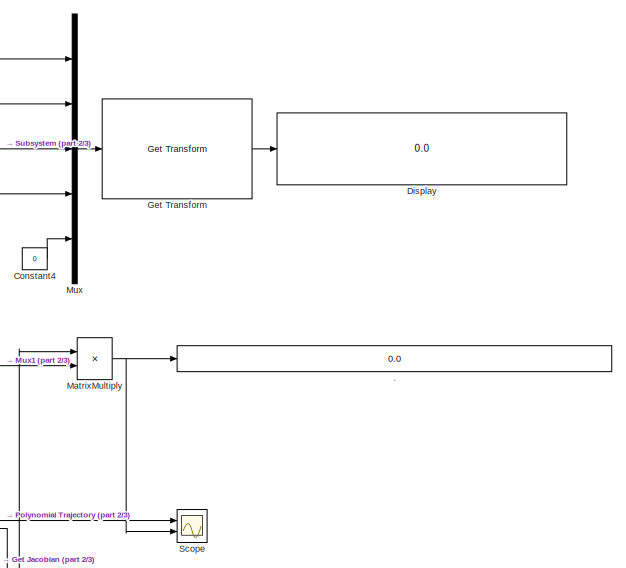
[diagram: root canvas - part 1/3, right side, full height]
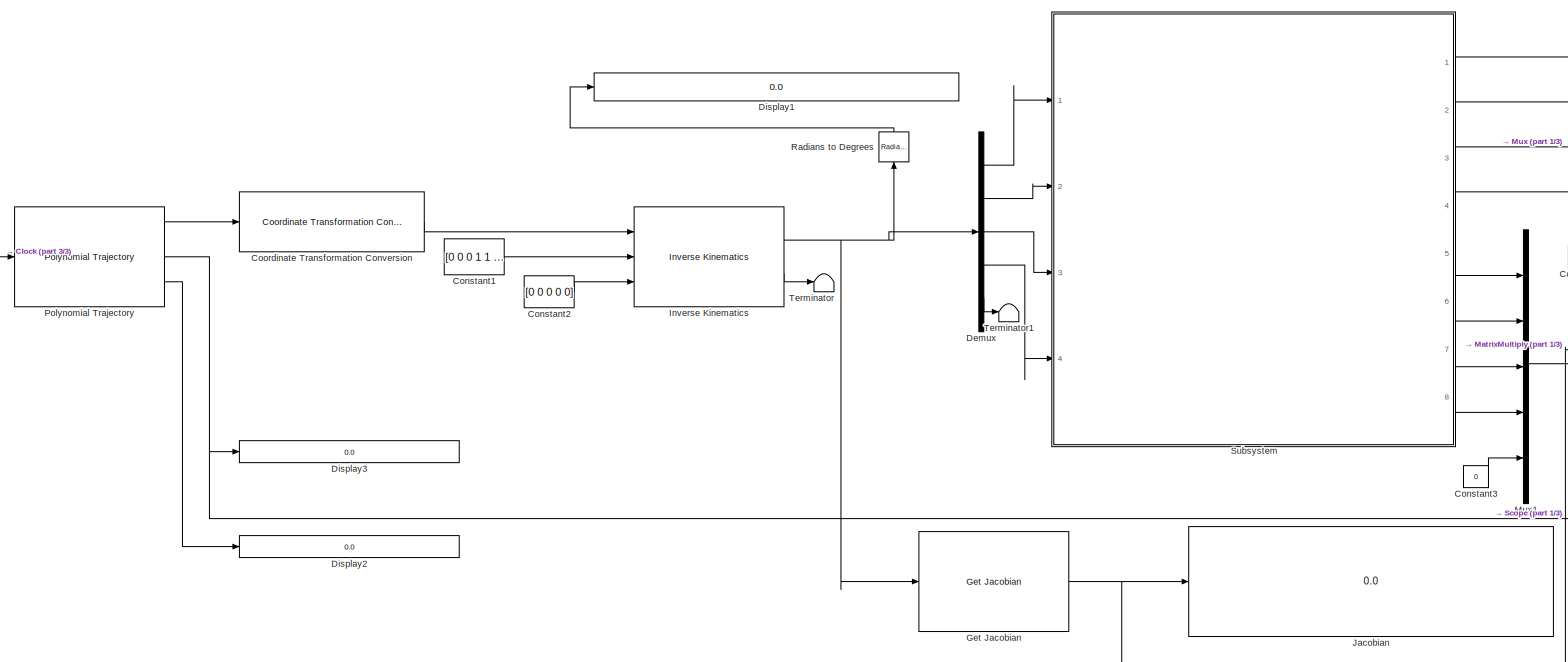
[diagram: root canvas - part 2/3, center side, full height]
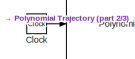
[diagram: root canvas - part 3/3, middle left region]
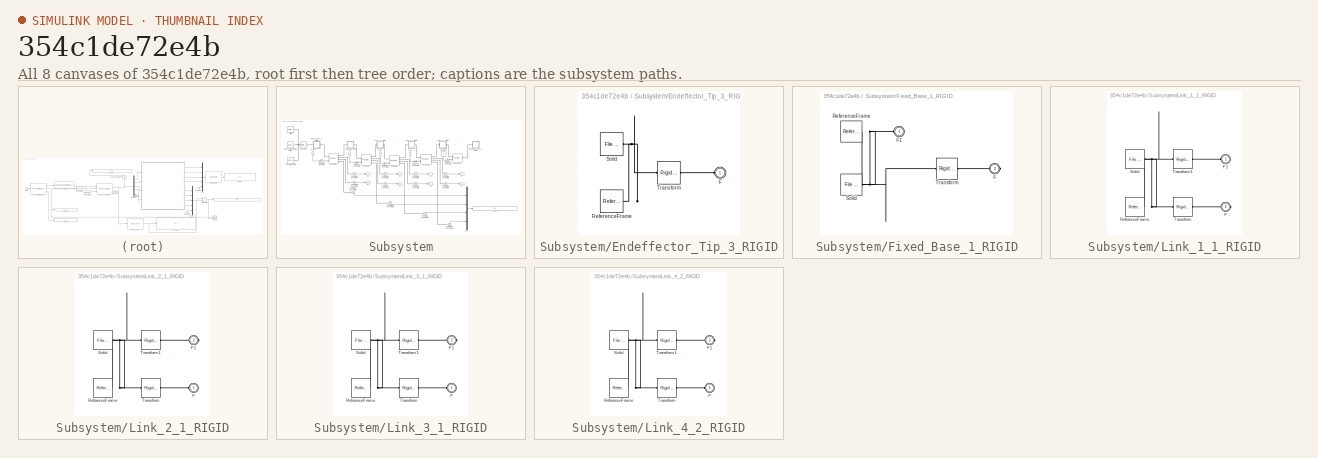
[diagram: thumbnail index - all 8 canvases of the model, root first then tree order]
MODEL slx_354c1de72e4b
KIND model
CONFIG AbsTol = auto
CONFIG EnableMultiTasking = off
CONFIG FixedStep = auto
CONFIG MaxStep = auto
CONFIG MinStep = auto
CONFIG RelTol = 1e-3
CONFIG SampleTimeConstraint = Unconstrained
CONFIG SolverName = VariableStepAuto
CONFIG StartTime = 0.0
CONFIG StopTime = 10
WORKSPACE source: external: MATLAB File  (data not in archive)
BLOCK [Display] .
  Decimation = 1
  Ports = [1]
BLOCK [Clock] Clock
BLOCK [Constant] Constant1
  Value = [0 0 0 1 1 1]
BLOCK [Constant] Constant2
  Value = [0 0 0 0 0]
BLOCK [Constant] Constant3
  Value = 0
BLOCK [Constant] Constant4
  Value = 0
BLOCK [Reference] Coordinate Transformation Conversion  REF=robotcorelib/Coordinate Transformation Conversion
  Ports = [1, 1]
  SourceBlock = robotcorelib/Coordinate Transformation Conversion
  SourceProductBaseCode = RO,NV,RR,UV
  SourceType = robotics.slcore.internal.block.CoordinateTransformationConversion
BLOCK [Demux] Demux
  Outputs = 5
  Ports = [1, 5]
BLOCK [Display] Display
  Decimation = 1
  Ports = [1]
BLOCK [Display] Display1
  Decimation = 1
  Ports = [1]
BLOCK [Display] Display2
  Decimation = 1
  Ports = [1]
BLOCK [Display] Display3
  Decimation = 1
  Ports = [1]
BLOCK [Reference] Get Jacobian  REF=robotmaniplib/Get Jacobian
  Ports = [1, 1]
  SourceBlock = robotmaniplib/Get Jacobian
  SourceProductBaseCode = RO
  SourceType = Get Jacobian
BLOCK [Reference] Get Transform  REF=robotmaniplib/Get Transform
  Ports = [1, 1]
  SourceBlock = robotmaniplib/Get Transform
  SourceProductBaseCode = RO
  SourceType = Get Transform
BLOCK [Reference] Inverse Kinematics  REF=robotmaniplib/Inverse Kinematics
  Ports = [3, 2]
  SourceBlock = robotmaniplib/Inverse Kinematics
  SourceProductBaseCode = RO
  SourceType = Inverse Kinematics
BLOCK [Display] Jacobian
  Decimation = 1
  Ports = [1]
BLOCK [Product] MatrixMultiply
  Multiplication = Matrix(*)
  Ports = [2, 1]
BLOCK [Mux] Mux
  DisplayOption = bar
  Inputs = 5
  Ports = [5, 1]
BLOCK [Mux] Mux1
  DisplayOption = bar
  Inputs = 5
  Ports = [5, 1]
BLOCK [Reference] Polynomial Trajectory  REF=robotcorelib/Polynomial Trajectory
  Ports = [1, 3]
  SourceBlock = robotcorelib/Polynomial Trajectory
  SourceProductBaseCode = RO,NV,RR,UV
  SourceType = robotics.slcore.internal.block.PolyTrajSys
BLOCK [Reference] Radians to Degrees  REF=simulink_extras/Transformations/Radians
to Degrees
  NameLocation = right
  Ports = [1, 1]
  SourceBlock = simulink_extras/Transformations/Radians\nto Degrees
  SourceProductBaseCode = SL
  SourceType = RadiansToDegrees
BLOCK [Scope] Scope
  Floating = off
  NumInputPorts = 2
  Ports = [2]
  ScopeSpecificationString = Simulink.scopes.TimeScopeBlockCfg('CurrentConfiguration', extmgr.ConfigurationSet(extmgr.Configuration('Core','General UI',true),extmgr.Configuration('Core','Source UI',true),extmgr.Configuration('Sources','WiredSimulink',true),extmgr.Configuration('Visuals','Time Domain',true,'SerializedDisplays',{struct('MinYLimReal','-1.29625','MaxYLimReal','1.66625','YLabelReal','','MinYLimMag','0.00000','MaxY...<+1515ch>
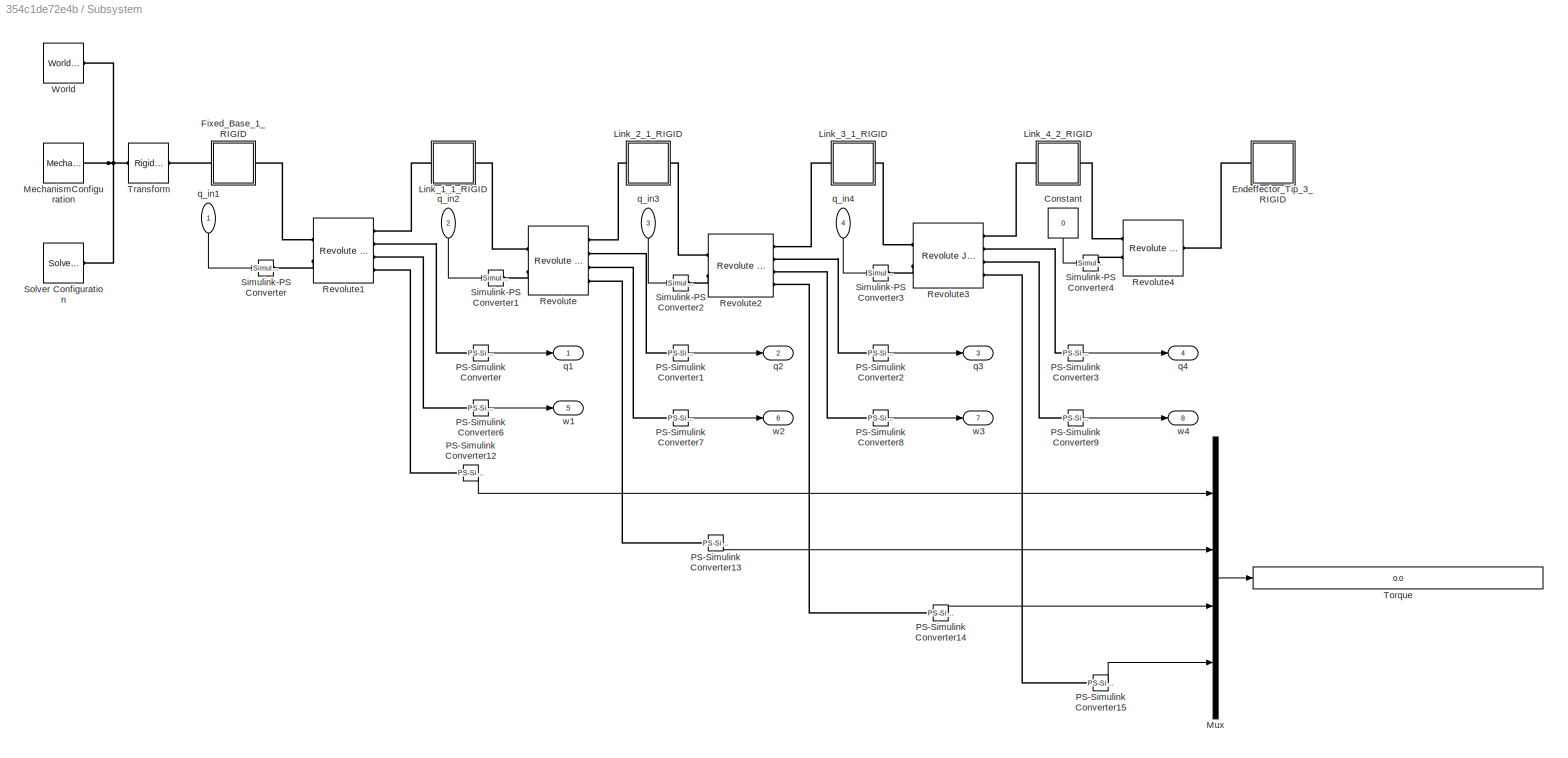
BLOCK [SubSystem] Subsystem
  Ports = [4, 8]
  RequestExecContextInheritance = off
BLOCK [Constant] Subsystem/Constant
  NameLocation = left
  Value = 0
BLOCK [SubSystem] Subsystem/Endeffector_Tip_3_RIGID
  Ports = [0, 0, 0, 0, 0, 1]
  RequestExecContextInheritance = off
BLOCK [PMIOPort] Subsystem/Endeffector_Tip_3_RIGID/F
  Side = Left
BLOCK [Reference] Subsystem/Endeffector_Tip_3_RIGID/ReferenceFrame  REF=sm_lib/Frames and
Transforms/Reference
Frame
  Ports = [0, 0, 0, 0, 0, 0, 1]
  SourceBlock = sm_lib/Frames and\nTransforms/Reference\nFrame
  SourceProductBaseCode = MS
  SourceType = Reference\nFrame
BLOCK [Reference] Subsystem/Endeffector_Tip_3_RIGID/Solid  REF=sm_lib/Body Elements/File Solid
  Ports = [0, 0, 0, 0, 0, 0, 1]
  SourceBlock = sm_lib/Body Elements/File Solid
  SourceProductBaseCode = MS
  SourceType = File Solid
BLOCK [Reference] Subsystem/Endeffector_Tip_3_RIGID/Transform  REF=sm_lib/Frames and
Transforms/Rigid
Transform
  Ports = [0, 0, 0, 0, 0, 1, 1]
  SourceBlock = sm_lib/Frames and\nTransforms/Rigid\nTransform
  SourceProductBaseCode = MS
  SourceType = Rigid\nTransform
BLOCK [SubSystem] Subsystem/Fixed_Base_1_RIGID
  Ports = [0, 0, 0, 0, 0, 1, 1]
  RequestExecContextInheritance = off
BLOCK [PMIOPort] Subsystem/Fixed_Base_1_RIGID/F
  Port = 2
  Side = Right
BLOCK [PMIOPort] Subsystem/Fixed_Base_1_RIGID/F1
  Side = Left
BLOCK [Reference] Subsystem/Fixed_Base_1_RIGID/ReferenceFrame  REF=sm_lib/Frames and
Transforms/Reference
Frame
  Ports = [0, 0, 0, 0, 0, 0, 1]
  SourceBlock = sm_lib/Frames and\nTransforms/Reference\nFrame
  SourceProductBaseCode = MS
  SourceType = Reference\nFrame
BLOCK [Reference] Subsystem/Fixed_Base_1_RIGID/Solid  REF=sm_lib/Body Elements/File Solid
  Ports = [0, 0, 0, 0, 0, 0, 1]
  SourceBlock = sm_lib/Body Elements/File Solid
  SourceProductBaseCode = MS
  SourceType = File Solid
BLOCK [Reference] Subsystem/Fixed_Base_1_RIGID/Transform  REF=sm_lib/Frames and
Transforms/Rigid
Transform
  Ports = [0, 0, 0, 0, 0, 1, 1]
  SourceBlock = sm_lib/Frames and\nTransforms/Rigid\nTransform
  SourceProductBaseCode = MS
  SourceType = Rigid\nTransform
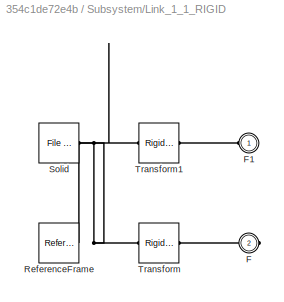
BLOCK [SubSystem] Subsystem/Link_1_1_RIGID
  Ports = [0, 0, 0, 0, 0, 1, 1]
  RequestExecContextInheritance = off
BLOCK [PMIOPort] Subsystem/Link_1_1_RIGID/F
  Port = 2
  Side = Right
BLOCK [PMIOPort] Subsystem/Link_1_1_RIGID/F1
  Side = Left
BLOCK [Reference] Subsystem/Link_1_1_RIGID/ReferenceFrame  REF=sm_lib/Frames and
Transforms/Reference
Frame
  Ports = [0, 0, 0, 0, 0, 0, 1]
  SourceBlock = sm_lib/Frames and\nTransforms/Reference\nFrame
  SourceProductBaseCode = MS
  SourceType = Reference\nFrame
BLOCK [Reference] Subsystem/Link_1_1_RIGID/Solid  REF=sm_lib/Body Elements/File Solid
  Ports = [0, 0, 0, 0, 0, 0, 1]
  SourceBlock = sm_lib/Body Elements/File Solid
  SourceProductBaseCode = MS
  SourceType = File Solid
BLOCK [Reference] Subsystem/Link_1_1_RIGID/Transform  REF=sm_lib/Frames and
Transforms/Rigid
Transform
  Ports = [0, 0, 0, 0, 0, 1, 1]
  SourceBlock = sm_lib/Frames and\nTransforms/Rigid\nTransform
  SourceProductBaseCode = MS
  SourceType = Rigid\nTransform
BLOCK [Reference] Subsystem/Link_1_1_RIGID/Transform1  REF=sm_lib/Frames and
Transforms/Rigid
Transform
  Ports = [0, 0, 0, 0, 0, 1, 1]
  SourceBlock = sm_lib/Frames and\nTransforms/Rigid\nTransform
  SourceProductBaseCode = MS
  SourceType = Rigid\nTransform
BLOCK [SubSystem] Subsystem/Link_2_1_RIGID
  Ports = [0, 0, 0, 0, 0, 1, 1]
  RequestExecContextInheritance = off
BLOCK [PMIOPort] Subsystem/Link_2_1_RIGID/F
  Side = Left
BLOCK [PMIOPort] Subsystem/Link_2_1_RIGID/F1
  Port = 2
  Side = Right
BLOCK [Reference] Subsystem/Link_2_1_RIGID/ReferenceFrame  REF=sm_lib/Frames and
Transforms/Reference
Frame
  Ports = [0, 0, 0, 0, 0, 0, 1]
  SourceBlock = sm_lib/Frames and\nTransforms/Reference\nFrame
  SourceProductBaseCode = MS
  SourceType = Reference\nFrame
BLOCK [Reference] Subsystem/Link_2_1_RIGID/Solid  REF=sm_lib/Body Elements/File Solid
  Ports = [0, 0, 0, 0, 0, 0, 1]
  SourceBlock = sm_lib/Body Elements/File Solid
  SourceProductBaseCode = MS
  SourceType = File Solid
BLOCK [Reference] Subsystem/Link_2_1_RIGID/Transform  REF=sm_lib/Frames and
Transforms/Rigid
Transform
  Ports = [0, 0, 0, 0, 0, 1, 1]
  SourceBlock = sm_lib/Frames and\nTransforms/Rigid\nTransform
  SourceProductBaseCode = MS
  SourceType = Rigid\nTransform
BLOCK [Reference] Subsystem/Link_2_1_RIGID/Transform1  REF=sm_lib/Frames and
Transforms/Rigid
Transform
  Ports = [0, 0, 0, 0, 0, 1, 1]
  SourceBlock = sm_lib/Frames and\nTransforms/Rigid\nTransform
  SourceProductBaseCode = MS
  SourceType = Rigid\nTransform
BLOCK [SubSystem] Subsystem/Link_3_1_RIGID
  Ports = [0, 0, 0, 0, 0, 1, 1]
  RequestExecContextInheritance = off
BLOCK [PMIOPort] Subsystem/Link_3_1_RIGID/F
  Side = Left
BLOCK [PMIOPort] Subsystem/Link_3_1_RIGID/F1
  Port = 2
  Side = Right
BLOCK [Reference] Subsystem/Link_3_1_RIGID/ReferenceFrame  REF=sm_lib/Frames and
Transforms/Reference
Frame
  Ports = [0, 0, 0, 0, 0, 0, 1]
  SourceBlock = sm_lib/Frames and\nTransforms/Reference\nFrame
  SourceProductBaseCode = MS
  SourceType = Reference\nFrame
BLOCK [Reference] Subsystem/Link_3_1_RIGID/Solid  REF=sm_lib/Body Elements/File Solid
  Ports = [0, 0, 0, 0, 0, 0, 1]
  SourceBlock = sm_lib/Body Elements/File Solid
  SourceProductBaseCode = MS
  SourceType = File Solid
BLOCK [Reference] Subsystem/Link_3_1_RIGID/Transform  REF=sm_lib/Frames and
Transforms/Rigid
Transform
  Ports = [0, 0, 0, 0, 0, 1, 1]
  SourceBlock = sm_lib/Frames and\nTransforms/Rigid\nTransform
  SourceProductBaseCode = MS
  SourceType = Rigid\nTransform
BLOCK [Reference] Subsystem/Link_3_1_RIGID/Transform1  REF=sm_lib/Frames and
Transforms/Rigid
Transform
  Ports = [0, 0, 0, 0, 0, 1, 1]
  SourceBlock = sm_lib/Frames and\nTransforms/Rigid\nTransform
  SourceProductBaseCode = MS
  SourceType = Rigid\nTransform
BLOCK [SubSystem] Subsystem/Link_4_2_RIGID
  Ports = [0, 0, 0, 0, 0, 1, 1]
  RequestExecContextInheritance = off
BLOCK [PMIOPort] Subsystem/Link_4_2_RIGID/F
  Side = Left
BLOCK [PMIOPort] Subsystem/Link_4_2_RIGID/F1
  Port = 2
  Side = Right
BLOCK [Reference] Subsystem/Link_4_2_RIGID/ReferenceFrame  REF=sm_lib/Frames and
Transforms/Reference
Frame
  Ports = [0, 0, 0, 0, 0, 0, 1]
  SourceBlock = sm_lib/Frames and\nTransforms/Reference\nFrame
  SourceProductBaseCode = MS
  SourceType = Reference\nFrame
BLOCK [Reference] Subsystem/Link_4_2_RIGID/Solid  REF=sm_lib/Body Elements/File Solid
  Ports = [0, 0, 0, 0, 0, 0, 1]
  SourceBlock = sm_lib/Body Elements/File Solid
  SourceProductBaseCode = MS
  SourceType = File Solid
BLOCK [Reference] Subsystem/Link_4_2_RIGID/Transform  REF=sm_lib/Frames and
Transforms/Rigid
Transform
  Ports = [0, 0, 0, 0, 0, 1, 1]
  SourceBlock = sm_lib/Frames and\nTransforms/Rigid\nTransform
  SourceProductBaseCode = MS
  SourceType = Rigid\nTransform
BLOCK [Reference] Subsystem/Link_4_2_RIGID/Transform1  REF=sm_lib/Frames and
Transforms/Rigid
Transform
  Ports = [0, 0, 0, 0, 0, 1, 1]
  SourceBlock = sm_lib/Frames and\nTransforms/Rigid\nTransform
  SourceProductBaseCode = MS
  SourceType = Rigid\nTransform
BLOCK [Reference] Subsystem/MechanismConfiguration  REF=sm_lib/Utilities/Mechanism
Configuration
  Ports = [0, 0, 0, 0, 0, 0, 1]
  SourceBlock = sm_lib/Utilities/Mechanism\nConfiguration
  SourceProductBaseCode = MS
  SourceType = Mechanism\nConfiguration
BLOCK [Mux] Subsystem/Mux
  DisplayOption = bar
  Ports = [4, 1]
BLOCK [Reference] Subsystem/PS-Simulink Converter  REF=nesl_utility/PS-Simulink
Converter
  Ports = [0, 1, 0, 0, 0, 1]
  SourceBlock = nesl_utility/PS-Simulink\nConverter
  SourceProductBaseCode = SS,PW,VE
  SourceType = PS-Simulink\nConverter
BLOCK [Reference] Subsystem/PS-Simulink Converter1  REF=nesl_utility/PS-Simulink
Converter
  Ports = [0, 1, 0, 0, 0, 1]
  SourceBlock = nesl_utility/PS-Simulink\nConverter
  SourceProductBaseCode = SS,PW,VE
  SourceType = PS-Simulink\nConverter
BLOCK [Reference] Subsystem/PS-Simulink Converter12  REF=nesl_utility/PS-Simulink
Converter
  Ports = [0, 1, 0, 0, 0, 1]
  SourceBlock = nesl_utility/PS-Simulink\nConverter
  SourceProductBaseCode = SS,PW,VE
  SourceType = PS-Simulink\nConverter
BLOCK [Reference] Subsystem/PS-Simulink Converter13  REF=nesl_utility/PS-Simulink
Converter
  Ports = [0, 1, 0, 0, 0, 1]
  SourceBlock = nesl_utility/PS-Simulink\nConverter
  SourceProductBaseCode = SS,PW,VE
  SourceType = PS-Simulink\nConverter
BLOCK [Reference] Subsystem/PS-Simulink Converter14  REF=nesl_utility/PS-Simulink
Converter
  Ports = [0, 1, 0, 0, 0, 1]
  SourceBlock = nesl_utility/PS-Simulink\nConverter
  SourceProductBaseCode = SS,PW,VE
  SourceType = PS-Simulink\nConverter
BLOCK [Reference] Subsystem/PS-Simulink Converter15  REF=nesl_utility/PS-Simulink
Converter
  Ports = [0, 1, 0, 0, 0, 1]
  SourceBlock = nesl_utility/PS-Simulink\nConverter
  SourceProductBaseCode = SS,PW,VE
  SourceType = PS-Simulink\nConverter
BLOCK [Reference] Subsystem/PS-Simulink Converter2  REF=nesl_utility/PS-Simulink
Converter
  Ports = [0, 1, 0, 0, 0, 1]
  SourceBlock = nesl_utility/PS-Simulink\nConverter
  SourceProductBaseCode = SS,PW,VE
  SourceType = PS-Simulink\nConverter
BLOCK [Reference] Subsystem/PS-Simulink Converter3  REF=nesl_utility/PS-Simulink
Converter
  Ports = [0, 1, 0, 0, 0, 1]
  SourceBlock = nesl_utility/PS-Simulink\nConverter
  SourceProductBaseCode = SS,PW,VE
  SourceType = PS-Simulink\nConverter
BLOCK [Reference] Subsystem/PS-Simulink Converter6  REF=nesl_utility/PS-Simulink
Converter
  Ports = [0, 1, 0, 0, 0, 1]
  SourceBlock = nesl_utility/PS-Simulink\nConverter
  SourceProductBaseCode = SS,PW,VE
  SourceType = PS-Simulink\nConverter
BLOCK [Reference] Subsystem/PS-Simulink Converter7  REF=nesl_utility/PS-Simulink
Converter
  Ports = [0, 1, 0, 0, 0, 1]
  SourceBlock = nesl_utility/PS-Simulink\nConverter
  SourceProductBaseCode = SS,PW,VE
  SourceType = PS-Simulink\nConverter
BLOCK [Reference] Subsystem/PS-Simulink Converter8  REF=nesl_utility/PS-Simulink
Converter
  Ports = [0, 1, 0, 0, 0, 1]
  SourceBlock = nesl_utility/PS-Simulink\nConverter
  SourceProductBaseCode = SS,PW,VE
  SourceType = PS-Simulink\nConverter
BLOCK [Reference] Subsystem/PS-Simulink Converter9  REF=nesl_utility/PS-Simulink
Converter
  Ports = [0, 1, 0, 0, 0, 1]
  SourceBlock = nesl_utility/PS-Simulink\nConverter
  SourceProductBaseCode = SS,PW,VE
  SourceType = PS-Simulink\nConverter
BLOCK [Reference] Subsystem/Revolute  REF=sm_lib/Joints/Revolute Joint
  Ports = [0, 0, 0, 0, 0, 2, 4]
  SourceBlock = sm_lib/Joints/Revolute Joint
  SourceProductBaseCode = MS
  SourceType = Revolute Joint
BLOCK [Reference] Subsystem/Revolute1  REF=sm_lib/Joints/Revolute Joint
  Ports = [0, 0, 0, 0, 0, 2, 4]
  SourceBlock = sm_lib/Joints/Revolute Joint
  SourceProductBaseCode = MS
  SourceType = Revolute Joint
BLOCK [Reference] Subsystem/Revolute2  REF=sm_lib/Joints/Revolute Joint
  Ports = [0, 0, 0, 0, 0, 2, 4]
  SourceBlock = sm_lib/Joints/Revolute Joint
  SourceProductBaseCode = MS
  SourceType = Revolute Joint
BLOCK [Reference] Subsystem/Revolute3  REF=sm_lib/Joints/Revolute Joint
  Ports = [0, 0, 0, 0, 0, 2, 4]
  SourceBlock = sm_lib/Joints/Revolute Joint
  SourceProductBaseCode = MS
  SourceType = Revolute Joint
BLOCK [Reference] Subsystem/Revolute4  REF=sm_lib/Joints/Revolute Joint
  Ports = [0, 0, 0, 0, 0, 2, 1]
  SourceBlock = sm_lib/Joints/Revolute Joint
  SourceProductBaseCode = MS
  SourceType = Revolute Joint
BLOCK [Reference] Subsystem/Simulink-PS Converter  REF=nesl_utility/Simulink-PS
Converter
  Ports = [1, 0, 0, 0, 0, 0, 1]
  SourceBlock = nesl_utility/Simulink-PS\nConverter
  SourceProductBaseCode = SS,PW,VE
  SourceType = Simulink-PS\nConverter
BLOCK [Reference] Subsystem/Simulink-PS Converter1  REF=nesl_utility/Simulink-PS
Converter
  Ports = [1, 0, 0, 0, 0, 0, 1]
  SourceBlock = nesl_utility/Simulink-PS\nConverter
  SourceProductBaseCode = SS,PW,VE
  SourceType = Simulink-PS\nConverter
BLOCK [Reference] Subsystem/Simulink-PS Converter2  REF=nesl_utility/Simulink-PS
Converter
  Ports = [1, 0, 0, 0, 0, 0, 1]
  SourceBlock = nesl_utility/Simulink-PS\nConverter
  SourceProductBaseCode = SS,PW,VE
  SourceType = Simulink-PS\nConverter
BLOCK [Reference] Subsystem/Simulink-PS Converter3  REF=nesl_utility/Simulink-PS
Converter
  Ports = [1, 0, 0, 0, 0, 0, 1]
  SourceBlock = nesl_utility/Simulink-PS\nConverter
  SourceProductBaseCode = SS,PW,VE
  SourceType = Simulink-PS\nConverter
BLOCK [Reference] Subsystem/Simulink-PS Converter4  REF=nesl_utility/Simulink-PS
Converter
  Ports = [1, 0, 0, 0, 0, 0, 1]
  SourceBlock = nesl_utility/Simulink-PS\nConverter
  SourceProductBaseCode = SS,PW,VE
  SourceType = Simulink-PS\nConverter
BLOCK [Reference] Subsystem/Solver Configuration  REF=nesl_utility/Solver
Configuration
  Ports = [0, 0, 0, 0, 0, 0, 1]
  SourceBlock = nesl_utility/Solver\nConfiguration
  SourceProductBaseCode = SS,PW,VE
  SourceType = Solver\nConfiguration
BLOCK [Display] Subsystem/Torque
  Decimation = 1
  Ports = [1]
BLOCK [Reference] Subsystem/Transform  REF=sm_lib/Frames and
Transforms/Rigid
Transform
  Ports = [0, 0, 0, 0, 0, 1, 1]
  SourceBlock = sm_lib/Frames and\nTransforms/Rigid\nTransform
  SourceProductBaseCode = MS
  SourceType = Rigid\nTransform
BLOCK [Reference] Subsystem/World  REF=sm_lib/Frames and
Transforms/World Frame
  Ports = [0, 0, 0, 0, 0, 0, 1]
  SourceBlock = sm_lib/Frames and\nTransforms/World Frame
  SourceProductBaseCode = MS
  SourceType = World Frame
BLOCK [Outport] Subsystem/q1
BLOCK [Outport] Subsystem/q2
  Port = 2
BLOCK [Outport] Subsystem/q3
  Port = 3
BLOCK [Outport] Subsystem/q4
  Port = 4
BLOCK [Inport] Subsystem/q_in1
  NameLocation = left
BLOCK [Inport] Subsystem/q_in2
  NameLocation = left
  Port = 2
BLOCK [Inport] Subsystem/q_in3
  NameLocation = left
  Port = 3
BLOCK [Inport] Subsystem/q_in4
  NameLocation = left
  Port = 4
BLOCK [Outport] Subsystem/w1
  Port = 5
BLOCK [Outport] Subsystem/w2
  Port = 6
BLOCK [Outport] Subsystem/w3
  Port = 7
BLOCK [Outport] Subsystem/w4
  Port = 8
BLOCK [Terminator] Terminator
BLOCK [Terminator] Terminator1
LINE Clock:1 -> Polynomial Trajectory:1
LINE Constant1:1 -> Inverse Kinematics:2
LINE Constant2:1 -> Inverse Kinematics:3
LINE Constant3:1 -> Mux1:5
LINE Constant4:1 -> Mux:5
LINE Coordinate Transformation Conversion:1 -> Inverse Kinematics:1
LINE Demux:1 -> Subsystem:1
LINE Demux:2 -> Subsystem:2
LINE Demux:3 -> Subsystem:3
LINE Demux:4 -> Subsystem:4
LINE Demux:5 -> Terminator1:1
NET Get Jacobian:1 -> Jacobian:1, MatrixMultiply:1
LINE Get Transform:1 -> Display:1
NET Inverse Kinematics:1 -> Demux:1, Get Jacobian:1, Radians to Degrees:1
LINE Inverse Kinematics:2 -> Terminator:1
NET MatrixMultiply:1 -> .:1, Scope:2
LINE Mux1:1 -> MatrixMultiply:2
LINE Mux:1 -> Get Transform:1
LINE Polynomial Trajectory:1 -> Coordinate Transformation Conversion:1
NET Polynomial Trajectory:2 -> Display3:1, Scope:1
LINE Polynomial Trajectory:3 -> Display2:1
LINE Radians to Degrees:1 -> Display1:1
LINE Subsystem/Constant:1 -> Subsystem/Simulink-PS Converter4:1
LINE Subsystem/Mux:1 -> Subsystem/Torque:1
LINE Subsystem/PS-Simulink Converter12:1 -> Subsystem/Mux:1
LINE Subsystem/PS-Simulink Converter13:1 -> Subsystem/Mux:2
LINE Subsystem/PS-Simulink Converter14:1 -> Subsystem/Mux:3
LINE Subsystem/PS-Simulink Converter15:1 -> Subsystem/Mux:4
LINE Subsystem/PS-Simulink Converter1:1 -> Subsystem/q2:1
LINE Subsystem/PS-Simulink Converter2:1 -> Subsystem/q3:1
LINE Subsystem/PS-Simulink Converter3:1 -> Subsystem/q4:1
LINE Subsystem/PS-Simulink Converter6:1 -> Subsystem/w1:1
LINE Subsystem/PS-Simulink Converter7:1 -> Subsystem/w2:1
LINE Subsystem/PS-Simulink Converter8:1 -> Subsystem/w3:1
LINE Subsystem/PS-Simulink Converter9:1 -> Subsystem/w4:1
LINE Subsystem/PS-Simulink Converter:1 -> Subsystem/q1:1
LINE Subsystem/q_in1:1 -> Subsystem/Simulink-PS Converter:1
LINE Subsystem/q_in2:1 -> Subsystem/Simulink-PS Converter1:1
LINE Subsystem/q_in3:1 -> Subsystem/Simulink-PS Converter2:1
LINE Subsystem/q_in4:1 -> Subsystem/Simulink-PS Converter3:1
LINE Subsystem:1 -> Mux:1
LINE Subsystem:2 -> Mux:2
LINE Subsystem:3 -> Mux:3
LINE Subsystem:4 -> Mux:4
LINE Subsystem:5 -> Mux1:1
LINE Subsystem:6 -> Mux1:2
LINE Subsystem:7 -> Mux1:3
LINE Subsystem:8 -> Mux1:4
PLINE Subsystem/Endeffector_Tip_3_RIGID/F:RConn1 -- Subsystem/Endeffector_Tip_3_RIGID/Transform:RConn1
PNET net1: Subsystem/Endeffector_Tip_3_RIGID/ReferenceFrame:RConn1 -- Subsystem/Endeffector_Tip_3_RIGID/Solid:RConn1 -- Subsystem/Endeffector_Tip_3_RIGID/Transform:LConn1
PLINE Subsystem/Endeffector_Tip_3_RIGID:LConn1 -- Subsystem/Revolute4:RConn1
PNET net2: Subsystem/Fixed_Base_1_RIGID/F1:RConn1 -- Subsystem/Fixed_Base_1_RIGID/ReferenceFrame:RConn1 -- Subsystem/Fixed_Base_1_RIGID/Solid:RConn1 -- Subsystem/Fixed_Base_1_RIGID/Transform:LConn1
PLINE Subsystem/Fixed_Base_1_RIGID/F:RConn1 -- Subsystem/Fixed_Base_1_RIGID/Transform:RConn1
PLINE Subsystem/Fixed_Base_1_RIGID:LConn1 -- Subsystem/Transform:RConn1
PLINE Subsystem/Fixed_Base_1_RIGID:RConn1 -- Subsystem/Revolute1:LConn1
PLINE Subsystem/Link_1_1_RIGID/F1:RConn1 -- Subsystem/Link_1_1_RIGID/Transform1:RConn1
PLINE Subsystem/Link_1_1_RIGID/F:RConn1 -- Subsystem/Link_1_1_RIGID/Transform:RConn1
PNET net3: Subsystem/Link_1_1_RIGID/ReferenceFrame:RConn1 -- Subsystem/Link_1_1_RIGID/Solid:RConn1 -- Subsystem/Link_1_1_RIGID/Transform1:LConn1 -- Subsystem/Link_1_1_RIGID/Transform:LConn1
PLINE Subsystem/Link_1_1_RIGID:LConn1 -- Subsystem/Revolute1:RConn1
PLINE Subsystem/Link_1_1_RIGID:RConn1 -- Subsystem/Revolute:LConn1
PLINE Subsystem/Link_2_1_RIGID/F1:RConn1 -- Subsystem/Link_2_1_RIGID/Transform1:RConn1
PLINE Subsystem/Link_2_1_RIGID/F:RConn1 -- Subsystem/Link_2_1_RIGID/Transform:RConn1
PNET net4: Subsystem/Link_2_1_RIGID/ReferenceFrame:RConn1 -- Subsystem/Link_2_1_RIGID/Solid:RConn1 -- Subsystem/Link_2_1_RIGID/Transform1:LConn1 -- Subsystem/Link_2_1_RIGID/Transform:LConn1
PLINE Subsystem/Link_2_1_RIGID:LConn1 -- Subsystem/Revolute:RConn1
PLINE Subsystem/Link_2_1_RIGID:RConn1 -- Subsystem/Revolute2:LConn1
PLINE Subsystem/Link_3_1_RIGID/F1:RConn1 -- Subsystem/Link_3_1_RIGID/Transform1:RConn1
PLINE Subsystem/Link_3_1_RIGID/F:RConn1 -- Subsystem/Link_3_1_RIGID/Transform:RConn1
PNET net5: Subsystem/Link_3_1_RIGID/ReferenceFrame:RConn1 -- Subsystem/Link_3_1_RIGID/Solid:RConn1 -- Subsystem/Link_3_1_RIGID/Transform1:LConn1 -- Subsystem/Link_3_1_RIGID/Transform:LConn1
PLINE Subsystem/Link_3_1_RIGID:LConn1 -- Subsystem/Revolute2:RConn1
PLINE Subsystem/Link_3_1_RIGID:RConn1 -- Subsystem/Revolute3:LConn1
PLINE Subsystem/Link_4_2_RIGID/F1:RConn1 -- Subsystem/Link_4_2_RIGID/Transform1:RConn1
PLINE Subsystem/Link_4_2_RIGID/F:RConn1 -- Subsystem/Link_4_2_RIGID/Transform:RConn1
PNET net6: Subsystem/Link_4_2_RIGID/ReferenceFrame:RConn1 -- Subsystem/Link_4_2_RIGID/Solid:RConn1 -- Subsystem/Link_4_2_RIGID/Transform1:LConn1 -- Subsystem/Link_4_2_RIGID/Transform:LConn1
PLINE Subsystem/Link_4_2_RIGID:LConn1 -- Subsystem/Revolute3:RConn1
PLINE Subsystem/Link_4_2_RIGID:RConn1 -- Subsystem/Revolute4:LConn1
PNET net7: Subsystem/MechanismConfiguration:RConn1 -- Subsystem/Solver Configuration:RConn1 -- Subsystem/Transform:LConn1 -- Subsystem/World:RConn1
PLINE Subsystem/PS-Simulink Converter12:LConn1 -- Subsystem/Revolute1:RConn4
PLINE Subsystem/PS-Simulink Converter13:LConn1 -- Subsystem/Revolute:RConn4
PLINE Subsystem/PS-Simulink Converter14:LConn1 -- Subsystem/Revolute2:RConn4
PLINE Subsystem/PS-Simulink Converter15:LConn1 -- Subsystem/Revolute3:RConn4
PLINE Subsystem/PS-Simulink Converter1:LConn1 -- Subsystem/Revolute:RConn2
PLINE Subsystem/PS-Simulink Converter2:LConn1 -- Subsystem/Revolute2:RConn2
PLINE Subsystem/PS-Simulink Converter3:LConn1 -- Subsystem/Revolute3:RConn2
PLINE Subsystem/PS-Simulink Converter6:LConn1 -- Subsystem/Revolute1:RConn3
PLINE Subsystem/PS-Simulink Converter7:LConn1 -- Subsystem/Revolute:RConn3
PLINE Subsystem/PS-Simulink Converter8:LConn1 -- Subsystem/Revolute2:RConn3
PLINE Subsystem/PS-Simulink Converter9:LConn1 -- Subsystem/Revolute3:RConn3
PLINE Subsystem/PS-Simulink Converter:LConn1 -- Subsystem/Revolute1:RConn2
PLINE Subsystem/Revolute1:LConn2 -- Subsystem/Simulink-PS Converter:RConn1
PLINE Subsystem/Revolute2:LConn2 -- Subsystem/Simulink-PS Converter2:RConn1
PLINE Subsystem/Revolute3:LConn2 -- Subsystem/Simulink-PS Converter3:RConn1
PLINE Subsystem/Revolute4:LConn2 -- Subsystem/Simulink-PS Converter4:RConn1
PLINE Subsystem/Revolute:LConn2 -- Subsystem/Simulink-PS Converter1:RConn1
note: NET lines group one-source signal fan-out (src -> all destinations, sorted); 1:1 wires keep LINE; PNET lines group multi-terminal physical nets as a canonical sorted terminal list (undirected conserving connections); 2-terminal nets keep the pairwise PLINE form
